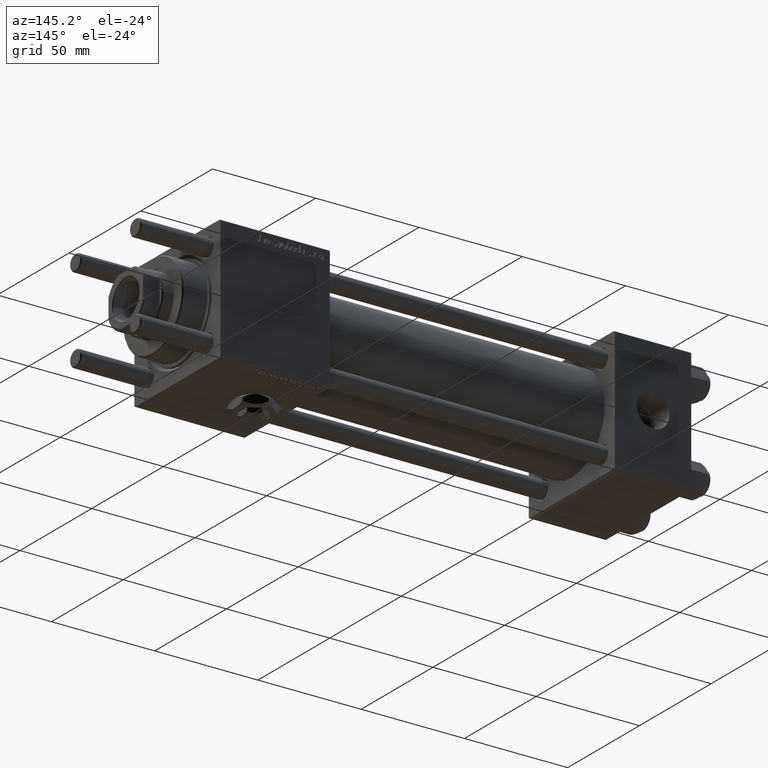
[diagram: clean part render]
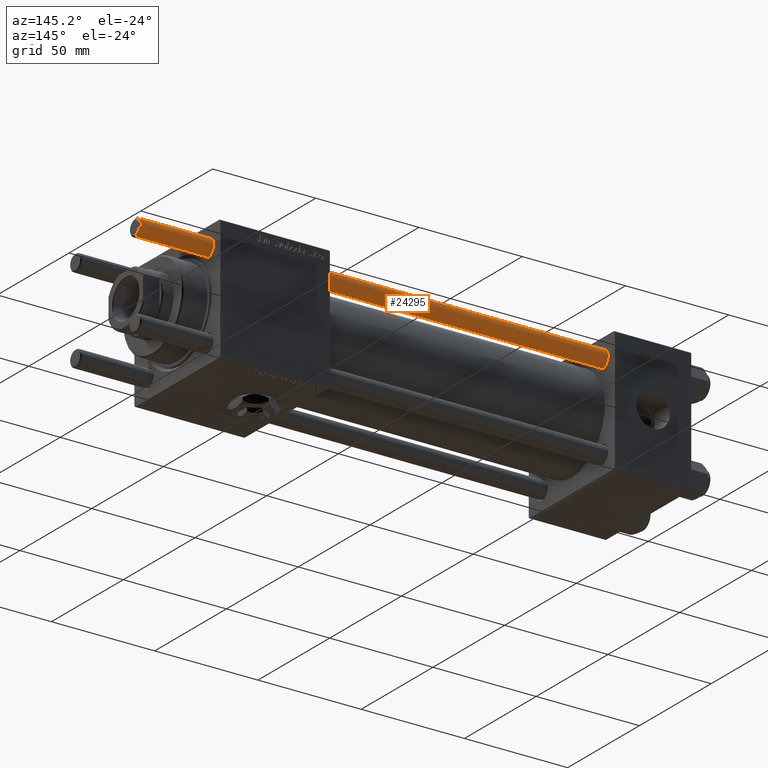
[diagram: same view with one face highlighted and labeled with its STEP entity id]
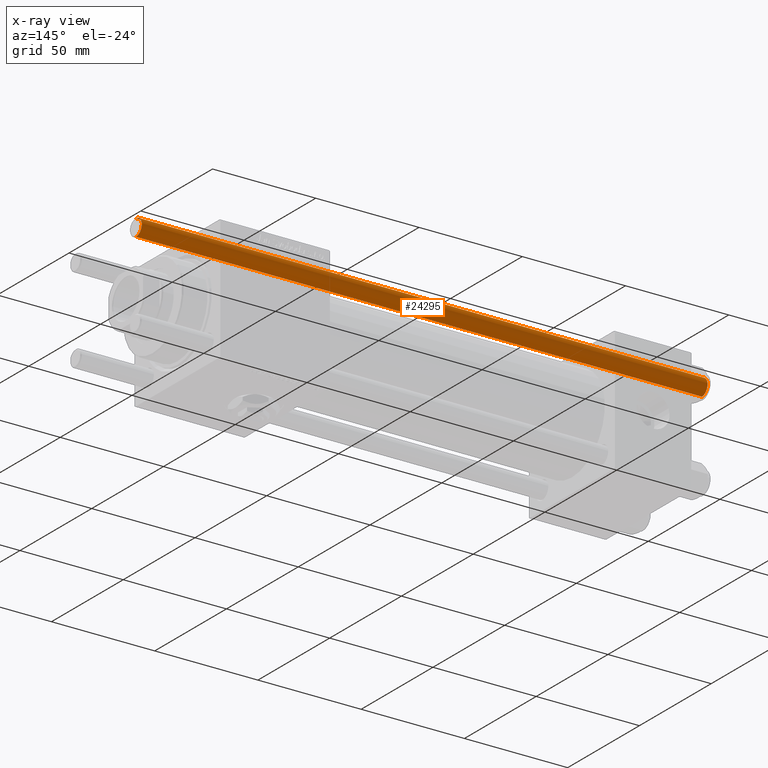
[diagram: x-ray of the same camera — body ghosted, the highlighted face saturated]
A machine part, auxiliary view. The second image highlights one B-rep face of the part: STEP entity #24295.
The next image is the same camera in x-ray: the body ghosted, the highlighted face saturated — about 0% of this face is hidden behind the body in this view.
In plain terms, the highlighted cylindrical surface (edge-blend (fillet) strip) has radius 4 mm, axis along (1, -0, -0).
Its self-contained STEP definition (entity closure, byte-faithful):
#529 = VERTEX_POINT ( 'NONE', #31037 ) ;
#1775 = ORIENTED_EDGE ( 'NONE', *, *, #5036, .T. ) ;
#4175 = CARTESIAN_POINT ( 'NONE',  ( -4.000000000000000000, 0.000000000000000000, 275.0000000000000000 ) ) ;
#4873 = DIRECTION ( 'NONE',  ( 0.000000000000000000, 0.000000000000000000, -1.000000000000000000 ) ) ;
#5036 = EDGE_CURVE ( 'NONE', #529, #18220, #51235, .T. ) ;
#5342 = CYLINDRICAL_SURFACE ( 'NONE', #53960, 4.000000000000000000 ) ;
#7163 = DIRECTION ( 'NONE',  ( -0.000000000000000000, -0.000000000000000000, -1.000000000000000000 ) ) ;
#7348 = EDGE_CURVE ( 'NONE', #18220, #31605, #20719, .T. ) ;
#10427 = CARTESIAN_POINT ( 'NONE',  ( -4.000000000000000000, 0.000000000000000000, 0.5000000000000559552 ) ) ;
#10672 = CIRCLE ( 'NONE', #25875, 4.000000000000000000 ) ;
#10691 = FACE_OUTER_BOUND ( 'NONE', #45598, .T. ) ;
#10700 = CARTESIAN_POINT ( 'NONE',  ( -4.000000000000000000, 0.000000000000000000, 274.5000000000000568 ) ) ;
#13474 = VECTOR ( 'NONE', #45225, 1000.000000000000000 ) ;
#15354 = EDGE_CURVE ( 'NONE', #26943, #529, #10672, .T. ) ;
#18220 = VERTEX_POINT ( 'NONE', #18952 ) ;
#18952 = CARTESIAN_POINT ( 'NONE',  ( 4.000000000000000000, 4.898587196589412829E-16, 0.5000000000000559552 ) ) ;
#19367 = CARTESIAN_POINT ( 'NONE',  ( 4.000000000000000000, 4.898587196589412829E-16, 275.0000000000000000 ) ) ;
#20719 = CIRCLE ( 'NONE', #54010, 4.000000000000000000 ) ;
#24295 = ADVANCED_FACE ( 'NONE', ( #10691 ), #5342, .T. ) ;
#24984 = ORIENTED_EDGE ( 'NONE', *, *, #7348, .T. ) ;
#25386 = VECTOR ( 'NONE', #7163, 1000.000000000000000 ) ;
#25875 = AXIS2_PLACEMENT_3D ( 'NONE', #54880, #4873, #27187 ) ;
#26943 = VERTEX_POINT ( 'NONE', #10700 ) ;
#27187 = DIRECTION ( 'NONE',  ( 1.000000000000000000, 0.000000000000000000, 0.000000000000000000 ) ) ;
#28839 = CARTESIAN_POINT ( 'NONE',  ( 0.000000000000000000, 0.000000000000000000, 275.0000000000000000 ) ) ;
#29912 = DIRECTION ( 'NONE',  ( -0.000000000000000000, -0.000000000000000000, 1.000000000000000000 ) ) ;
#31037 = CARTESIAN_POINT ( 'NONE',  ( 4.000000000000000000, 4.898587196589412829E-16, 274.5000000000000568 ) ) ;
#31605 = VERTEX_POINT ( 'NONE', #10427 ) ;
#33880 = DIRECTION ( 'NONE',  ( -1.000000000000000000, 0.000000000000000000, 0.000000000000000000 ) ) ;
#35114 = LINE ( 'NONE', #4175, #13474 ) ;
#37929 = EDGE_CURVE ( 'NONE', #26943, #31605, #35114, .T. ) ;
#42715 = DIRECTION ( 'NONE',  ( 1.000000000000000000, 0.000000000000000000, 0.000000000000000000 ) ) ;
#43124 = ORIENTED_EDGE ( 'NONE', *, *, #15354, .T. ) ;
#45225 = DIRECTION ( 'NONE',  ( -0.000000000000000000, -0.000000000000000000, -1.000000000000000000 ) ) ;
#45598 = EDGE_LOOP ( 'NONE', ( #43124, #1775, #24984, #52106 ) ) ;
#47002 = DIRECTION ( 'NONE',  ( -0.000000000000000000, -0.000000000000000000, -1.000000000000000000 ) ) ;
#51235 = LINE ( 'NONE', #19367, #25386 ) ;
#52106 = ORIENTED_EDGE ( 'NONE', *, *, #37929, .F. ) ;
#52563 = CARTESIAN_POINT ( 'NONE',  ( 0.000000000000000000, 0.000000000000000000, 0.5000000000000559552 ) ) ;
#53960 = AXIS2_PLACEMENT_3D ( 'NONE', #28839, #47002, #33880 ) ;
#54010 = AXIS2_PLACEMENT_3D ( 'NONE', #52563, #29912, #42715 ) ;
#54880 = CARTESIAN_POINT ( 'NONE',  ( 0.000000000000000000, 0.000000000000000000, 274.5000000000000568 ) ) ;